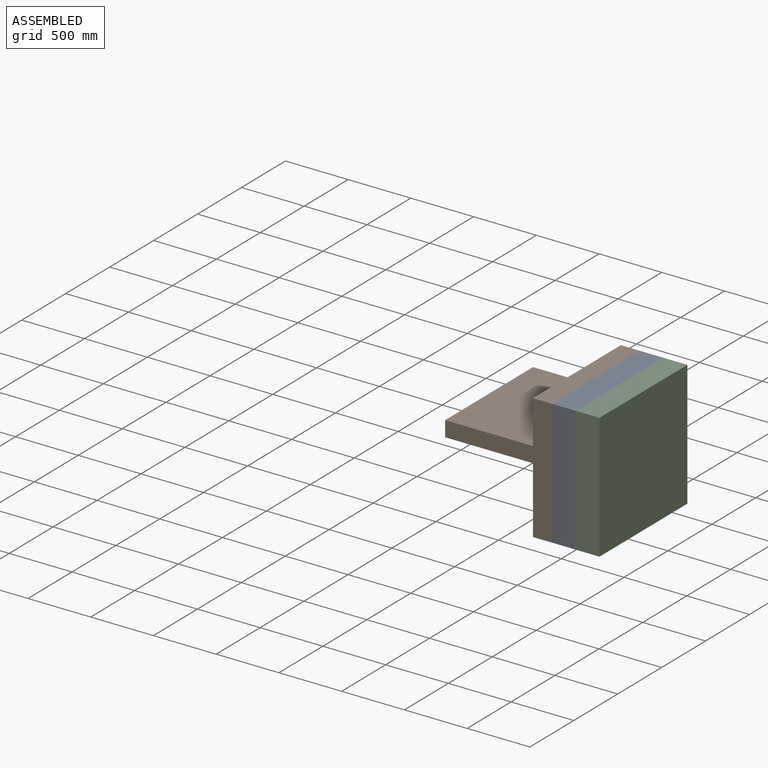
[diagram: assembled view]
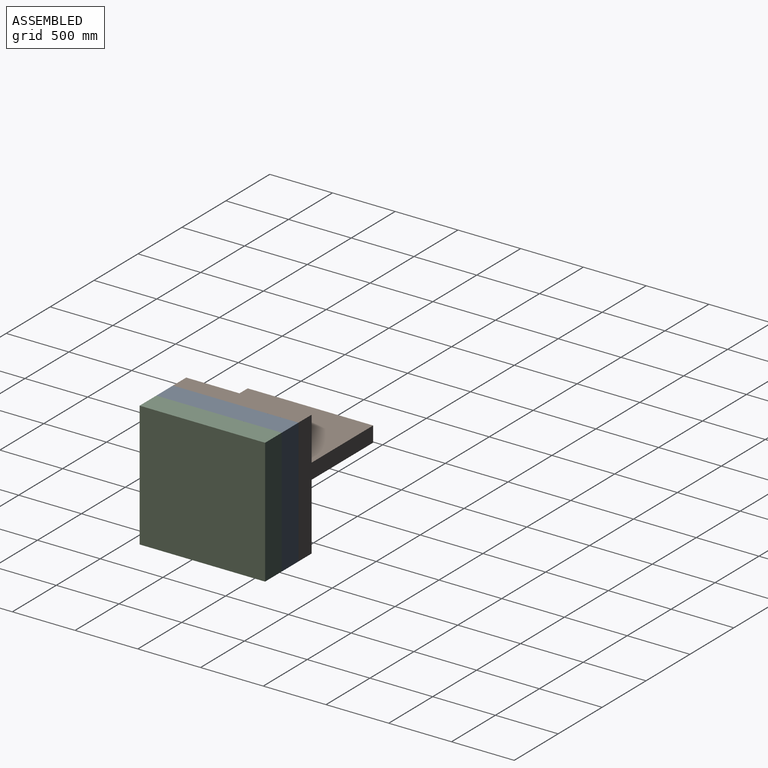
[diagram: assembled view, second angle]
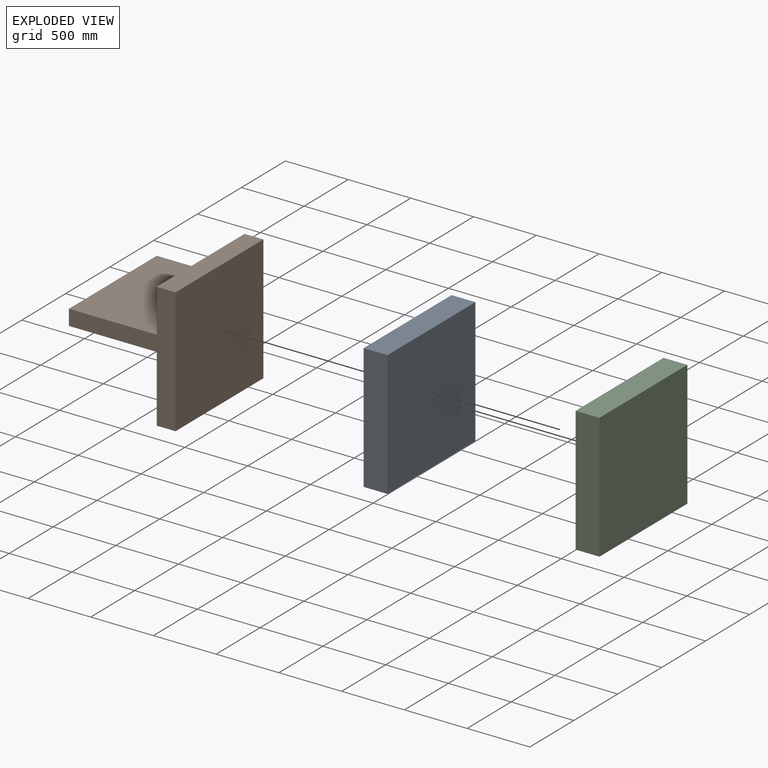
[diagram: exploded view]
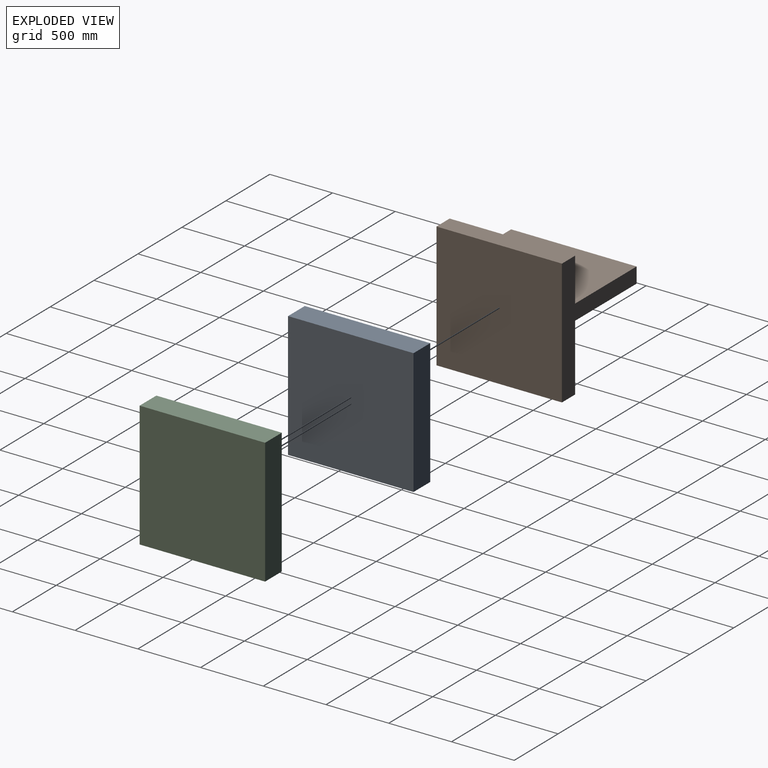
[diagram: exploded view, second angle]
ASSEMBLY  parts=3 mates=2
PART A: 6 faces, bbox 190x1000x1000 mm
  f0: plane 1000x190mm, normal (0,0,1), area 190000mm2, adj f1,f3,f4,f5
  f1: plane 1000x1000mm, normal (-1,0,0), area 1000000mm2, adj f0,f2,f4,f5
  f2: plane 1000x190mm, normal (0,0,-1), area 190000mm2, adj f1,f3,f4,f5
  f3: plane 1000x1000mm, normal (1,0,0), area 1000000mm2, adj f0,f2,f4,f5
  f4: plane 1000x190mm, normal (0,-1,0), area 190000mm2, adj f0,f1,f2,f3
  f5: plane 1000x190mm, normal (0,1,0), area 190000mm2, adj f0,f1,f2,f3
PART B: 10 faces, bbox 850x1000x1000 mm
  f0: plane 1000x531.24mm, normal (-1,0,0), area 531243.9mm2, adj f3,f5,f6,f9
  f1: plane 1000x150mm, normal (0,0,1), area 150000mm2, adj f2,f4,f5,f6
  f2: plane 1000x345.15mm, normal (-1,0,0), area 345150.3mm2, adj f1,f5,f6,f7
  f3: plane 1000x150mm, normal (0,0,-1), area 150000mm2, adj f0,f4,f5,f6
  f4: plane 1000x1000mm, normal (1,0,0), area 1000000mm2, adj f1,f3,f5,f6
  f5: plane 1000x850mm, normal (0,-1,0), area 236524.1mm2, adj f0,f1,f2,f3,f4,f7,f8,f9
  f6: plane 1000x850mm, normal (0,1,0), area 236524.1mm2, adj f0,f1,f2,f3,f4,f7,f8,f9
  f7: plane 1000x700mm, normal (0,0,1), area 700000mm2, adj f2,f5,f6,f8
  f8: plane 1000x123.61mm, normal (-1,0,0), area 123605.8mm2, adj f5,f6,f7,f9
  f9: plane 1000x700mm, normal (0,0,-1), area 700000mm2, adj f0,f5,f6,f8
PART C: same geometry as A
PLACE A t=(-518.53,119.18,-36.4)mm
PLACE B t=(-668.53,119.18,-36.4)mm
PLACE C t=(-328.53,119.18,-36.4)mm
MATE parallel A.f1 <-> B.f4  axis (-1,0,0) through (-658.96,-880.82,867.51)mm
MATE parallel C.f1 <-> A.f3  axis (-1,0,0) through (-468.96,-880.82,867.51)mm
